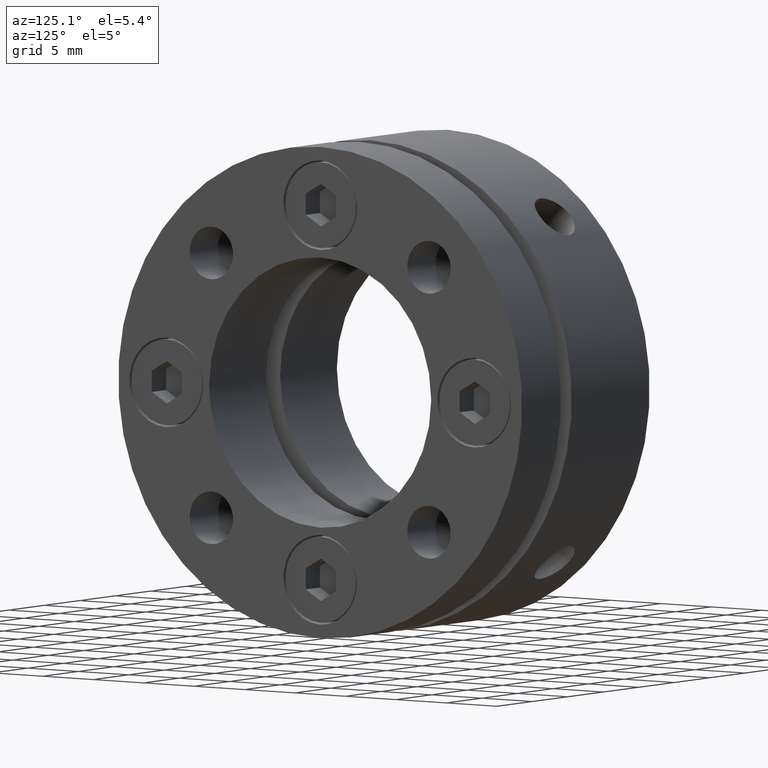
[diagram: clean part render]
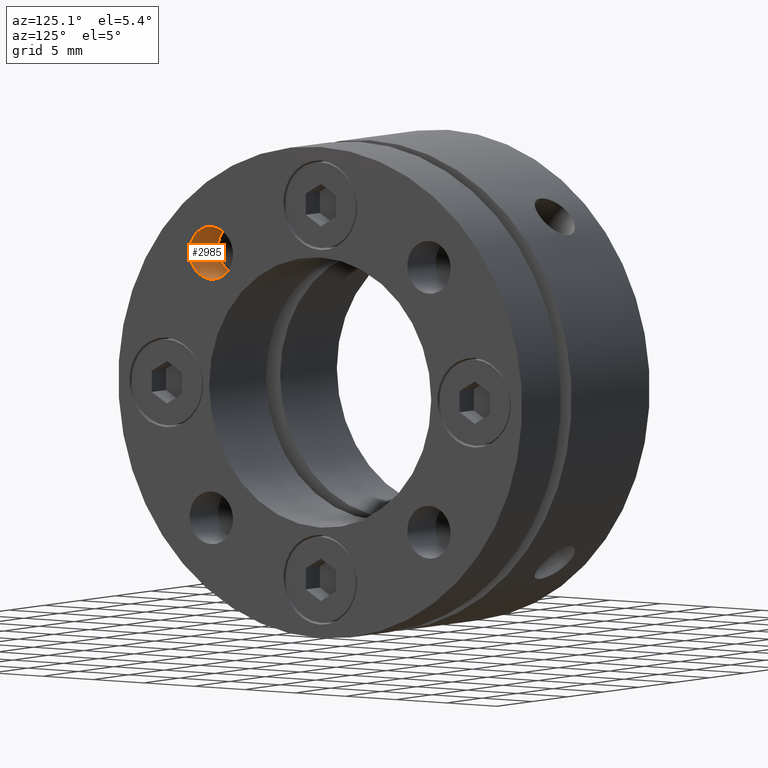
[diagram: same view with one face highlighted and labeled with its STEP entity id]
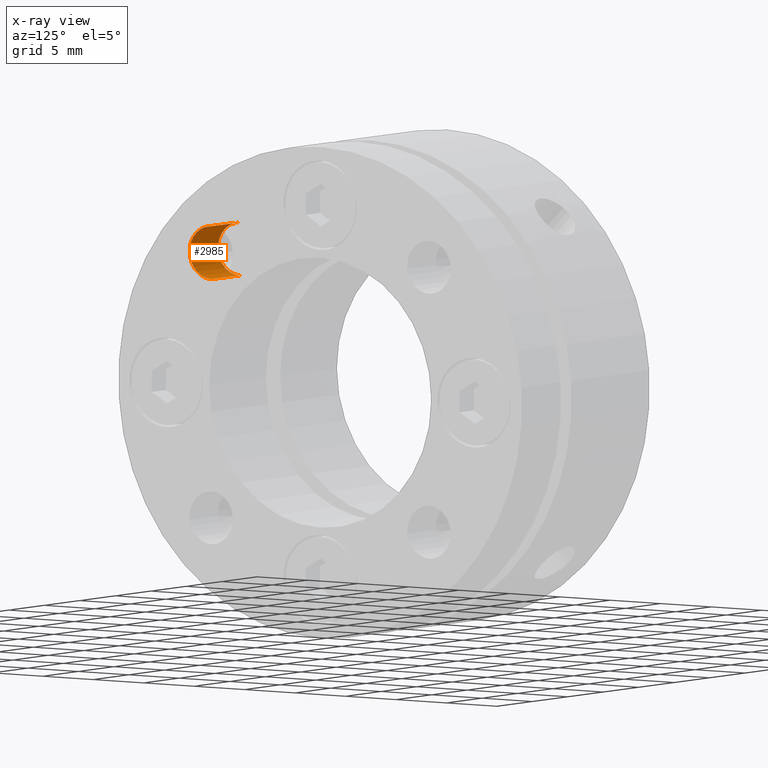
[diagram: x-ray of the same camera — body ghosted, the highlighted face saturated]
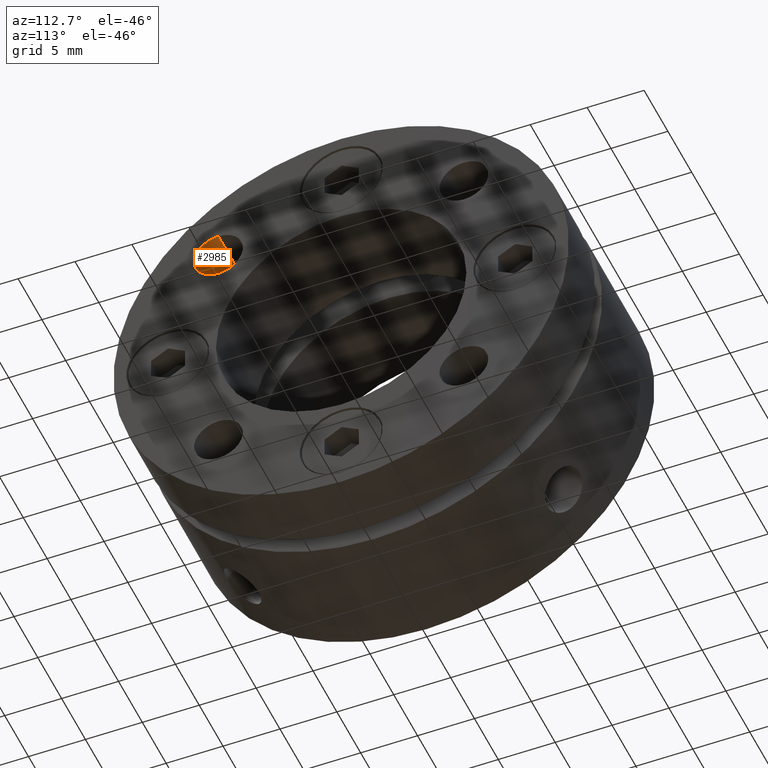
[diagram: same view with one face highlighted and labeled with its STEP entity id]
A machine part, auxiliary view. The second image highlights one B-rep face of the part: STEP entity #2985.
The next image is the same camera in x-ray: the body ghosted, the highlighted face saturated — about 0% of this face is hidden behind the body in this view.
A second angle (auxiliary view) of the same face is appended — the face is thin or edge-on in the first view.
In plain terms, the highlighted cylindrical surface (edge-blend (fillet) strip) has radius 2.15 mm, axis along (1, 0, 0).
Its self-contained STEP definition (entity closure, byte-faithful):
#177 = VERTEX_POINT ( 'NONE', #3240 ) ;
#431 = VERTEX_POINT ( 'NONE', #3326 ) ;
#470 = VERTEX_POINT ( 'NONE', #3351 ) ;
#476 = VERTEX_POINT ( 'NONE', #3353 ) ;
#656 = EDGE_CURVE ( 'NONE', #177, #431, #1515, .T. ) ;
#657 = EDGE_CURVE ( 'NONE', #177, #476, #1520, .T. ) ;
#658 = EDGE_CURVE ( 'NONE', #431, #470, #1518, .T. ) ;
#659 = EDGE_CURVE ( 'NONE', #470, #476, #1521, .T. ) ;
#909 = DIRECTION ( 'NONE',  ( 0.0000000000000000000, 0.0000000000000000000, -1.000000000000000000 ) ) ;
#911 = CARTESIAN_POINT ( 'NONE',  ( 15.99999999999999300, -10.78337841309485200, 10.78337841309485200 ) ) ;
#913 = DIRECTION ( 'NONE',  ( 1.000000000000000000, 0.0000000000000000000, 0.0000000000000000000 ) ) ;
#1212 = ORIENTED_EDGE ( 'NONE', *, *, #657, .T. ) ;
#1229 = ORIENTED_EDGE ( 'NONE', *, *, #658, .F. ) ;
#1296 = ORIENTED_EDGE ( 'NONE', *, *, #659, .F. ) ;
#1319 = ORIENTED_EDGE ( 'NONE', *, *, #656, .F. ) ;
#1384 = AXIS2_PLACEMENT_3D ( 'NONE', #911, #913, #909 ) ;
#1515 = CIRCLE ( 'NONE', #2301, 2.150000000000000800 ) ;
#1518 = LINE ( 'NONE', #3440, #1524 ) ;
#1520 = LINE ( 'NONE', #3451, #1522 ) ;
#1521 = CIRCLE ( 'NONE', #2302, 2.150000000000000800 ) ;
#1522 = VECTOR ( 'NONE', #3458, 1000.000000000000000 ) ;
#1524 = VECTOR ( 'NONE', #3513, 1000.000000000000000 ) ;
#1911 = EDGE_LOOP ( 'NONE', ( #1319, #1212, #1296, #1229 ) ) ;
#2301 = AXIS2_PLACEMENT_3D ( 'NONE', #3195, #3490, #3494 ) ;
#2302 = AXIS2_PLACEMENT_3D ( 'NONE', #3339, #3157, #3302 ) ;
#2778 = FACE_OUTER_BOUND ( 'NONE', #1911, .T. ) ;
#2784 = CYLINDRICAL_SURFACE ( 'NONE', #1384, 2.150000000000000800 ) ;
#2985 = ADVANCED_FACE ( 'NONE', ( #2778 ), #2784, .F. ) ;
#3157 = DIRECTION ( 'NONE',  ( -1.000000000000000000, -0.0000000000000000000, -0.0000000000000000000 ) ) ;
#3195 = CARTESIAN_POINT ( 'NONE',  ( 13.99999999999999500, -10.78337841309485200, 10.78337841309485200 ) ) ;
#3240 = CARTESIAN_POINT ( 'NONE',  ( 13.99999999999999500, -10.78337841309485200, 12.93337841023941700 ) ) ;
#3302 = DIRECTION ( 'NONE',  ( 0.0000000000000000000, 0.0000000000000000000, -1.000000000000000000 ) ) ;
#3326 = CARTESIAN_POINT ( 'NONE',  ( 13.99999999999999500, -10.78337841309485200, 8.633378415950284400 ) ) ;
#3339 = CARTESIAN_POINT ( 'NONE',  ( 17.99999999999999300, -10.78337841309485200, 10.78337841309485200 ) ) ;
#3351 = CARTESIAN_POINT ( 'NONE',  ( 17.99999999999999300, -10.78337841309485200, 8.633378413094851200 ) ) ;
#3353 = CARTESIAN_POINT ( 'NONE',  ( 17.99999999999999300, -10.78337841309485200, 12.93337841309485200 ) ) ;
#3440 = CARTESIAN_POINT ( 'NONE',  ( 15.99999999999999300, -10.78337841309485200, 8.633378413094851200 ) ) ;
#3451 = CARTESIAN_POINT ( 'NONE',  ( 15.99999999999999300, -10.78337841309485200, 12.93337841309485200 ) ) ;
#3458 = DIRECTION ( 'NONE',  ( 1.000000000000000000, 0.0000000000000000000, 0.0000000000000000000 ) ) ;
#3490 = DIRECTION ( 'NONE',  ( 1.000000000000000000, 0.0000000000000000000, 0.0000000000000000000 ) ) ;
#3494 = DIRECTION ( 'NONE',  ( 0.0000000000000000000, 0.0000000000000000000, -1.000000000000000000 ) ) ;
#3513 = DIRECTION ( 'NONE',  ( 1.000000000000000000, 0.0000000000000000000, 0.0000000000000000000 ) ) ;